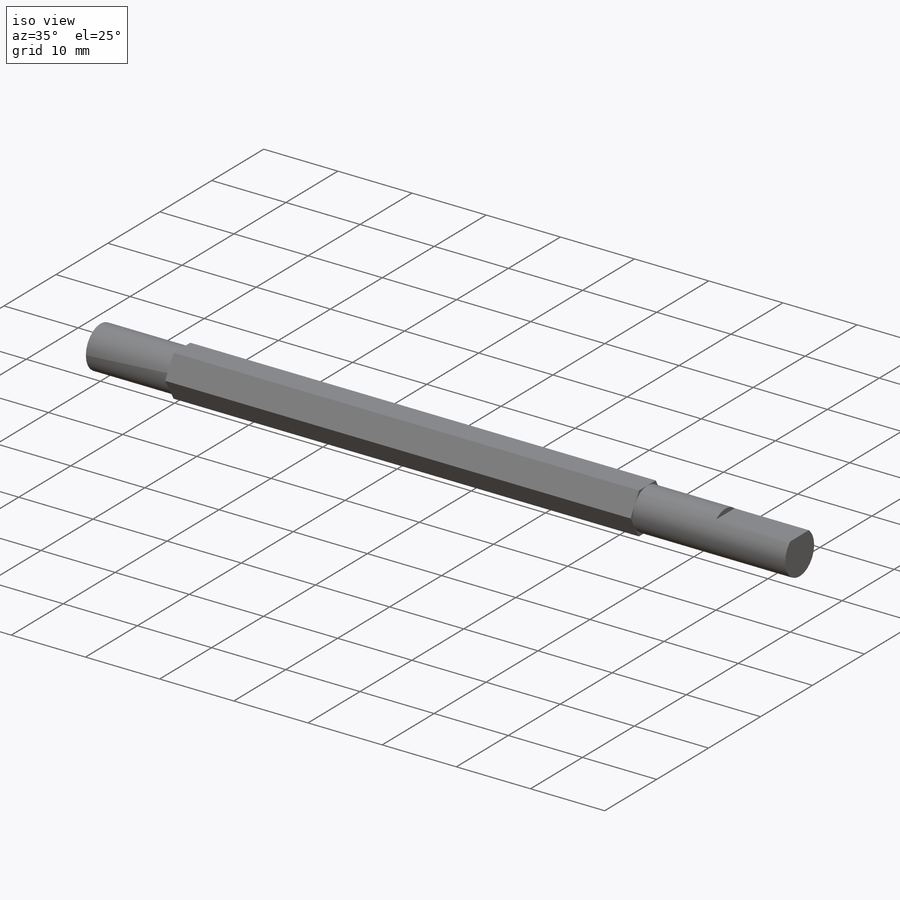
[diagram: iso view]
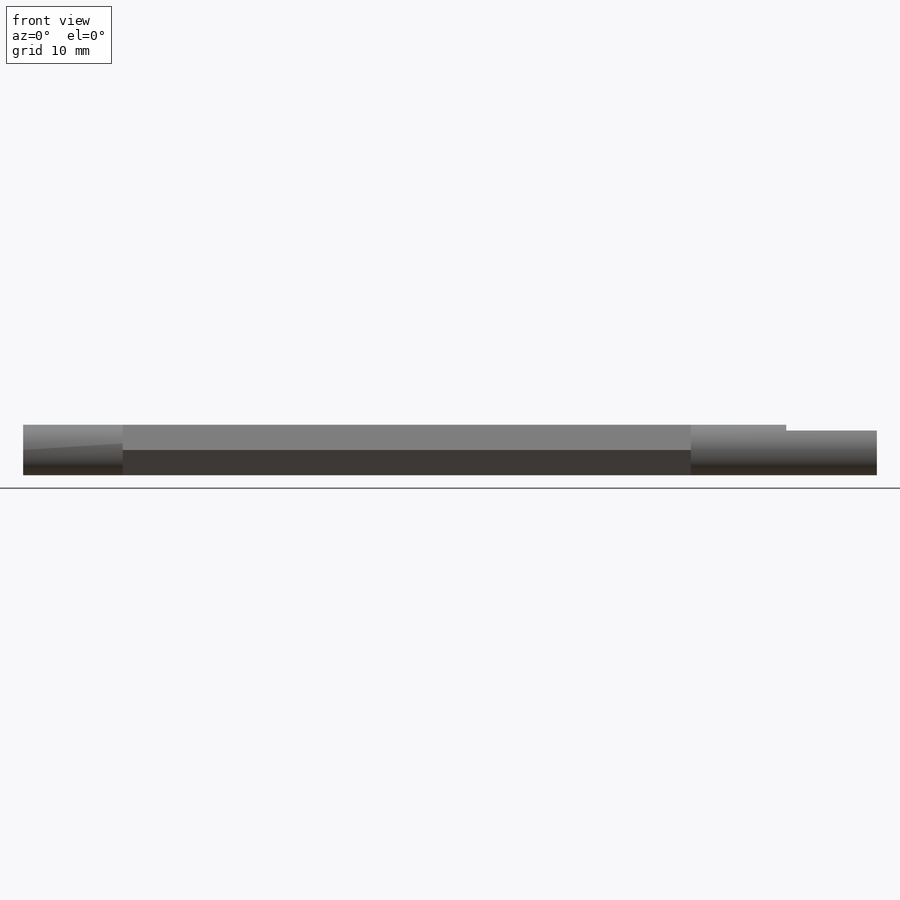
[diagram: front view]
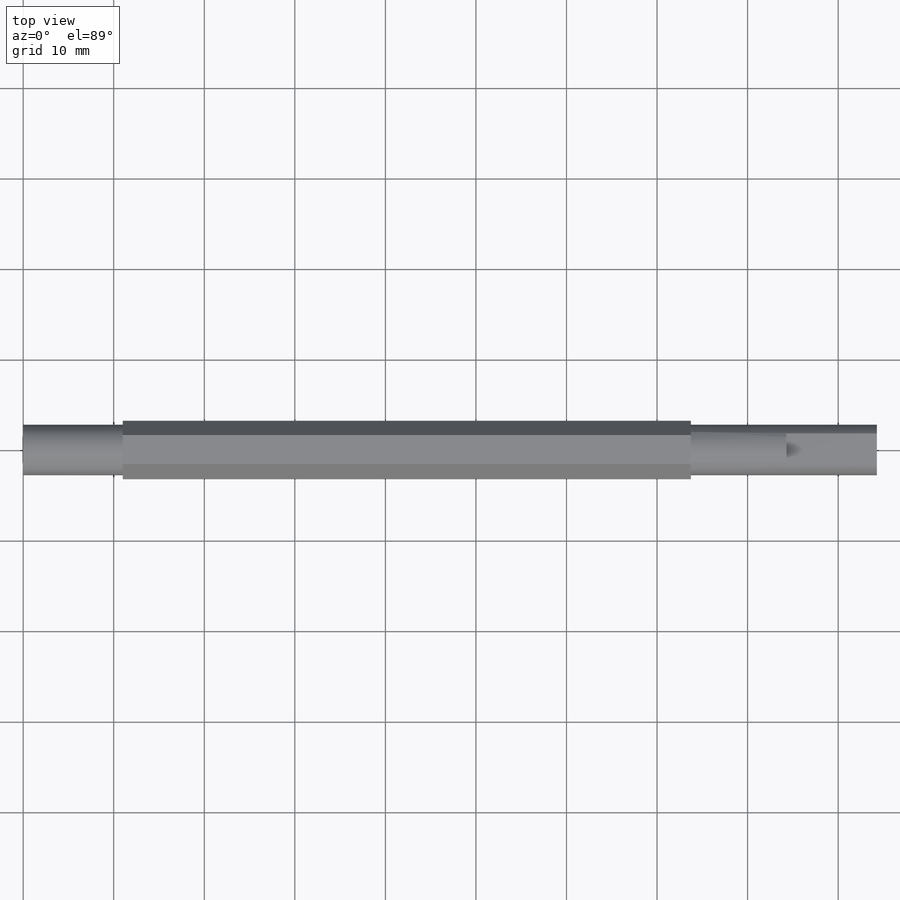
[diagram: top view]
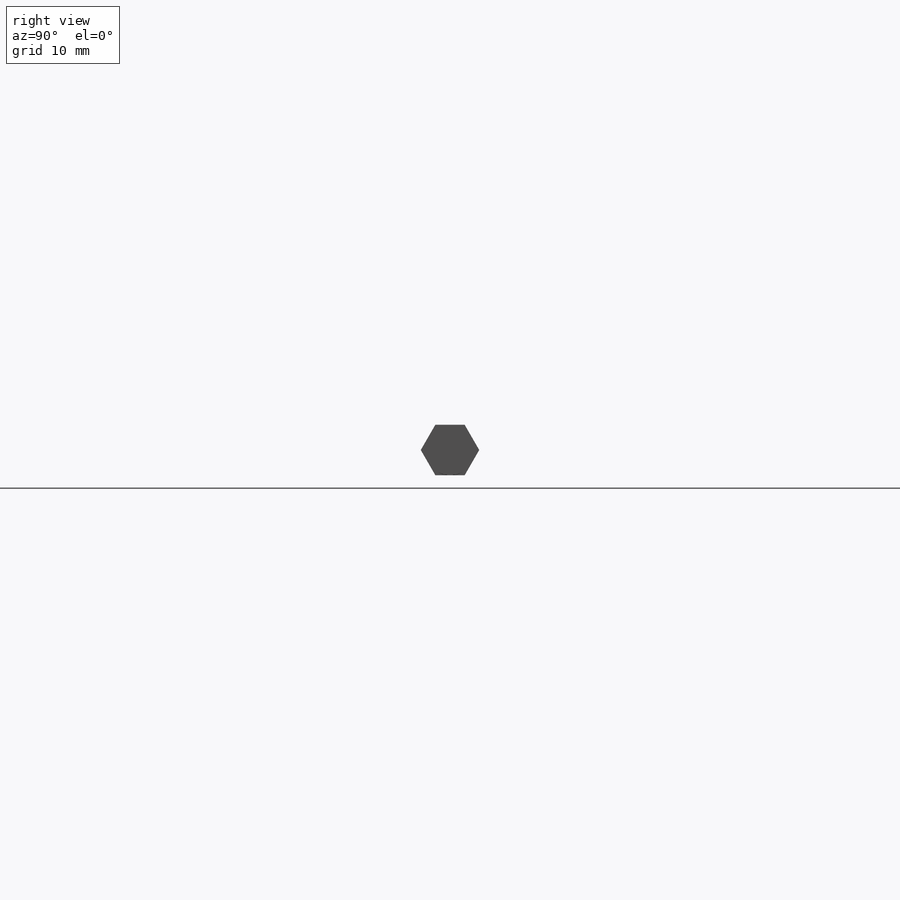
[diagram: right view]
SOLIDWORKS PART (.sldprt)
format: sldprt  version: not decoded by parser v0  size: 164,864 bytes
history: native  units: mm
features: plane x4, sketch x3, extrude x2, material x1, cut_extrude x1 (+9 scaffold rows collapsed)
feature tree (20):
  scaffold x9  (default folders/planes/origin — collapsed)
  material  "Material <nicht festgelegt>"
  plane  "Ebene vorne"
  plane  "Ebene oben"
  plane  "Ebene rechts"
  sketch  "Skizze1"  dims[D1=5.59mm]
  extrude  "Aufsatz-Linear austragen1"  Depth=94.27mm
  plane  "Ebene1"  Offset=11mm
  sketch  "Skizze2"  dims[c1.D4=5.59mm c1.D1=~3.473488mm c2.D1=~1.299411deg c3.D1=~3.473488mm c4.D1=~1.299411deg c5.D1=~3.388917mm c6.D1=~1.299411deg c7.D1=~3.473488mm c8.D1=0.0deg c8.D2=~3.388917mm c9.D2=360.0deg c9.D3=6.0mm c9.D1=~2.885914mm c10.D1=~234.61133deg c11.D1=~2.885914mm c12.D1=120.0deg c12.D2=~1.874568mm c13.D2=120.0deg c13.D3=2.795mm c14.D3=120.0deg c14.D5=~3.056651mm c15.D5=120.0deg]
  extrude  "Aufsatz-Linear austragen2"  Depth=62.74mm
  sketch  "Skizze3"  dims[D1=4.95mm]
  cut_extrude  "Schnitt-Linear austragen1"  Depth=10mm
decode coverage: 6 of 6 modeling features carry decoded parameters
note: ~ marks probable driven/reference dimensions
note: suppression state not decoded; provenance and decode notes live in map.json
